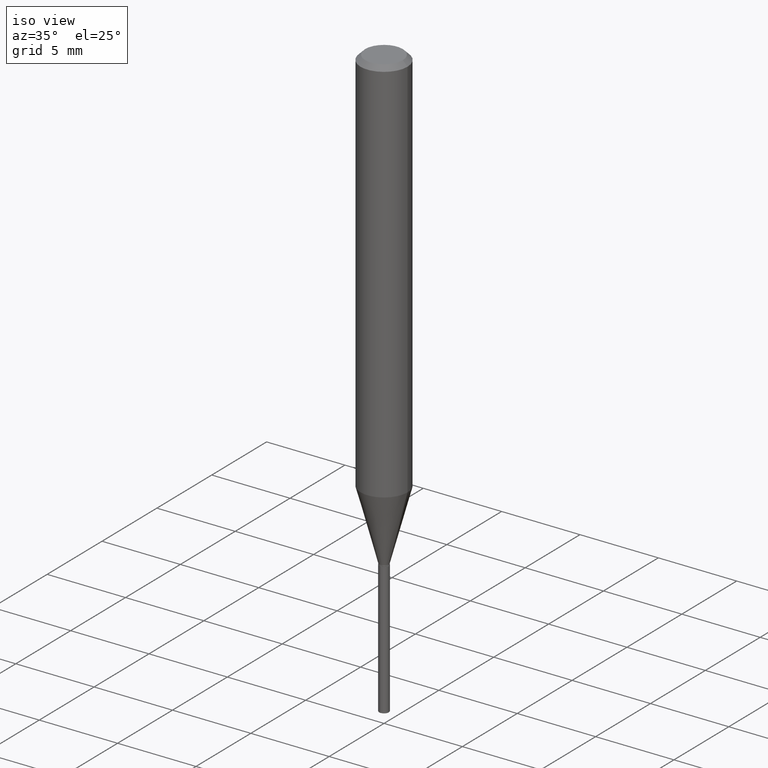
[diagram: clean part render]
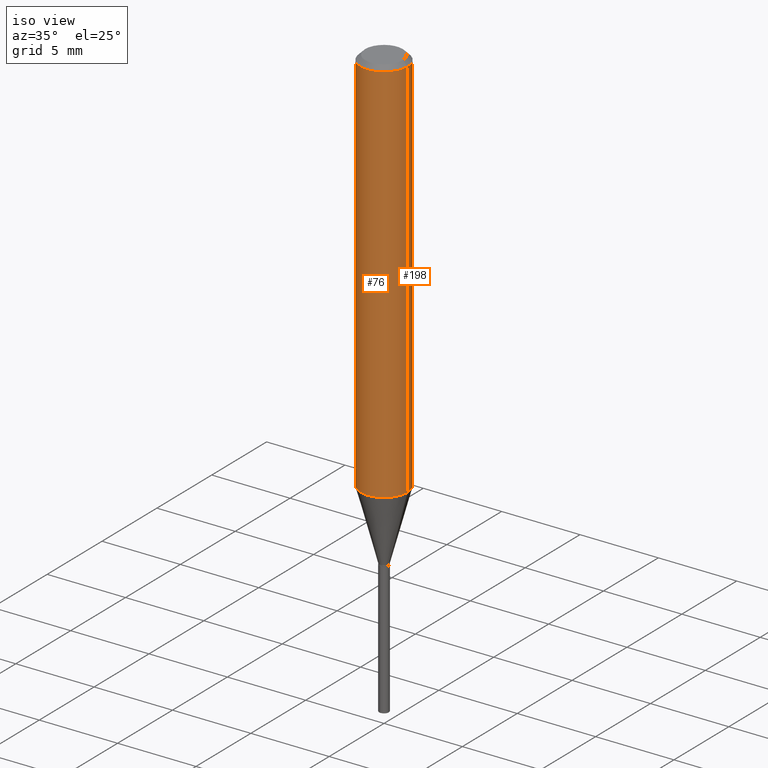
[diagram: same view with one multi-face feature highlighted, each face labeled with its STEP entity id]
A machine part, iso view. The highlighted faces form ONE feature: a constant-radius fillet chain: 2 tangent blend faces with common blend radius 1.4999 mm. The faces share edges in the B-rep.
Their STEP definitions:
[1] entity #76 (Cylinder):
#9 = FACE_OUTER_BOUND ( 'NONE', #143, .T. ) ;
#13 = LINE ( 'NONE', #284, #457 ) ;
#17 = DIRECTION ( 'NONE',  ( -2.445468806185136877E-29, 3.491481338843145188E-15, 1.000000000000000000 ) ) ;
#19 = EDGE_CURVE ( 'NONE', #256, #289, #266, .T. ) ;
#35 = CARTESIAN_POINT ( 'NONE',  ( 2.888098660104664642E-31, -4.123439461173780879E-17, -0.01181000000000007565 ) ) ;
#39 = EDGE_CURVE ( 'NONE', #428, #256, #53, .T. ) ;
#44 = DIRECTION ( 'NONE',  ( 1.000000000000000000, -6.982962677686265133E-15, 0.000000000000000000 ) ) ;
#53 = LINE ( 'NONE', #209, #273 ) ;
#76 = ADVANCED_FACE ( 'NONE', ( #9 ), #347, .T. ) ;
#84 = ORIENTED_EDGE ( 'NONE', *, *, #39, .F. ) ;
#87 = DIRECTION ( 'NONE',  ( -2.445468806185136597E-29, 3.491481338843145583E-15, 1.000000000000000000 ) ) ;
#143 = EDGE_LOOP ( 'NONE', ( #84, #157, #390, #431 ) ) ;
#152 = AXIS2_PLACEMENT_3D ( 'NONE', #270, #87, #278 ) ;
#157 = ORIENTED_EDGE ( 'NONE', *, *, #412, .T. ) ;
#187 = EDGE_CURVE ( 'NONE', #241, #289, #13, .T. ) ;
#188 = DIRECTION ( 'NONE',  ( -2.445468806185136597E-29, 3.491481338843145583E-15, 1.000000000000000000 ) ) ;
#191 = AXIS2_PLACEMENT_3D ( 'NONE', #283, #432, #44 ) ;
#209 = CARTESIAN_POINT ( 'NONE',  ( -0.05905000000000006771, 4.195754854663396409E-16, -2.904631170795525045E-30 ) ) ;
#241 = VERTEX_POINT ( 'NONE', #404 ) ;
#243 = DIRECTION ( 'NONE',  ( -2.445468806185136877E-29, 3.491481338843145188E-15, 1.000000000000000000 ) ) ;
#256 = VERTEX_POINT ( 'NONE', #406 ) ;
#266 = CIRCLE ( 'NONE', #304, 0.05904999999999999832 ) ;
#270 = CARTESIAN_POINT ( 'NONE',  ( 0.000000000000000000, 0.000000000000000000, 0.000000000000000000 ) ) ;
#273 = VECTOR ( 'NONE', #17, 39.37007874015748143 ) ;
#278 = DIRECTION ( 'NONE',  ( 1.000000000000000000, -6.982962677686266711E-15, 4.876176775795936353E-29 ) ) ;
#283 = CARTESIAN_POINT ( 'NONE',  ( 2.392419274614015052E-29, -3.415740667342255864E-15, -0.9783070095038842728 ) ) ;
#284 = CARTESIAN_POINT ( 'NONE',  ( 0.05905000000000006771, -4.123439461173745257E-16, 2.879382386107503723E-30 ) ) ;
#289 = VERTEX_POINT ( 'NONE', #365 ) ;
#304 = AXIS2_PLACEMENT_3D ( 'NONE', #35, #188, #480 ) ;
#347 = CYLINDRICAL_SURFACE ( 'NONE', #152, 0.05905000000000006771 ) ;
#349 = CARTESIAN_POINT ( 'NONE',  ( -0.05905000000000011628, -2.996165181875915977E-15, -0.9783070095038842728 ) ) ;
#360 = CIRCLE ( 'NONE', #191, 0.05905000000000013016 ) ;
#365 = CARTESIAN_POINT ( 'NONE',  ( 0.05904999999999999832, -4.535783407291118600E-16, -0.01181000000000007565 ) ) ;
#390 = ORIENTED_EDGE ( 'NONE', *, *, #187, .T. ) ;
#404 = CARTESIAN_POINT ( 'NONE',  ( 0.05905000000000011628, -3.828084613459630390E-15, -0.9783070095038842728 ) ) ;
#406 = CARTESIAN_POINT ( 'NONE',  ( -0.05904999999999999832, -1.308912045510656317E-15, -0.01181000000000007565 ) ) ;
#412 = EDGE_CURVE ( 'NONE', #428, #241, #360, .T. ) ;
#428 = VERTEX_POINT ( 'NONE', #349 ) ;
#431 = ORIENTED_EDGE ( 'NONE', *, *, #19, .F. ) ;
#432 = DIRECTION ( 'NONE',  ( -2.445468806185136597E-29, 3.491481338843145583E-15, 1.000000000000000000 ) ) ;
#457 = VECTOR ( 'NONE', #243, 39.37007874015748143 ) ;
#480 = DIRECTION ( 'NONE',  ( 1.000000000000000000, -6.982962677686266711E-15, 0.000000000000000000 ) ) ;
[2] entity #198 (Cylinder):
#13 = LINE ( 'NONE', #284, #457 ) ;
#17 = DIRECTION ( 'NONE',  ( -2.445468806185136877E-29, 3.491481338843145188E-15, 1.000000000000000000 ) ) ;
#39 = EDGE_CURVE ( 'NONE', #428, #256, #53, .T. ) ;
#53 = LINE ( 'NONE', #209, #273 ) ;
#56 = DIRECTION ( 'NONE',  ( 1.000000000000000000, -6.982962677686266711E-15, 4.876176775795936353E-29 ) ) ;
#65 = EDGE_CURVE ( 'NONE', #241, #428, #440, .T. ) ;
#95 = CYLINDRICAL_SURFACE ( 'NONE', #252, 0.05905000000000006771 ) ;
#118 = CARTESIAN_POINT ( 'NONE',  ( 2.392419274614015052E-29, -3.415740667342255864E-15, -0.9783070095038842728 ) ) ;
#119 = ORIENTED_EDGE ( 'NONE', *, *, #65, .T. ) ;
#149 = AXIS2_PLACEMENT_3D ( 'NONE', #189, #183, #334 ) ;
#160 = AXIS2_PLACEMENT_3D ( 'NONE', #118, #247, #455 ) ;
#183 = DIRECTION ( 'NONE',  ( -2.445468806185136597E-29, 3.491481338843145583E-15, 1.000000000000000000 ) ) ;
#187 = EDGE_CURVE ( 'NONE', #241, #289, #13, .T. ) ;
#189 = CARTESIAN_POINT ( 'NONE',  ( 2.888098660104664642E-31, -4.123439461173780879E-17, -0.01181000000000007565 ) ) ;
#198 = ADVANCED_FACE ( 'NONE', ( #435 ), #95, .T. ) ;
#204 = ORIENTED_EDGE ( 'NONE', *, *, #187, .F. ) ;
#209 = CARTESIAN_POINT ( 'NONE',  ( -0.05905000000000006771, 4.195754854663396409E-16, -2.904631170795525045E-30 ) ) ;
#210 = ORIENTED_EDGE ( 'NONE', *, *, #39, .T. ) ;
#211 = EDGE_LOOP ( 'NONE', ( #119, #210, #392, #204 ) ) ;
#241 = VERTEX_POINT ( 'NONE', #404 ) ;
#243 = DIRECTION ( 'NONE',  ( -2.445468806185136877E-29, 3.491481338843145188E-15, 1.000000000000000000 ) ) ;
#247 = DIRECTION ( 'NONE',  ( -2.445468806185136597E-29, 3.491481338843145583E-15, 1.000000000000000000 ) ) ;
#249 = CARTESIAN_POINT ( 'NONE',  ( 0.000000000000000000, 0.000000000000000000, 0.000000000000000000 ) ) ;
#252 = AXIS2_PLACEMENT_3D ( 'NONE', #249, #398, #56 ) ;
#256 = VERTEX_POINT ( 'NONE', #406 ) ;
#273 = VECTOR ( 'NONE', #17, 39.37007874015748143 ) ;
#284 = CARTESIAN_POINT ( 'NONE',  ( 0.05905000000000006771, -4.123439461173745257E-16, 2.879382386107503723E-30 ) ) ;
#289 = VERTEX_POINT ( 'NONE', #365 ) ;
#334 = DIRECTION ( 'NONE',  ( 1.000000000000000000, -6.982962677686266711E-15, 0.000000000000000000 ) ) ;
#349 = CARTESIAN_POINT ( 'NONE',  ( -0.05905000000000011628, -2.996165181875915977E-15, -0.9783070095038842728 ) ) ;
#365 = CARTESIAN_POINT ( 'NONE',  ( 0.05904999999999999832, -4.535783407291118600E-16, -0.01181000000000007565 ) ) ;
#392 = ORIENTED_EDGE ( 'NONE', *, *, #470, .F. ) ;
#394 = CIRCLE ( 'NONE', #149, 0.05904999999999999832 ) ;
#398 = DIRECTION ( 'NONE',  ( -2.445468806185136597E-29, 3.491481338843145583E-15, 1.000000000000000000 ) ) ;
#404 = CARTESIAN_POINT ( 'NONE',  ( 0.05905000000000011628, -3.828084613459630390E-15, -0.9783070095038842728 ) ) ;
#406 = CARTESIAN_POINT ( 'NONE',  ( -0.05904999999999999832, -1.308912045510656317E-15, -0.01181000000000007565 ) ) ;
#428 = VERTEX_POINT ( 'NONE', #349 ) ;
#435 = FACE_OUTER_BOUND ( 'NONE', #211, .T. ) ;
#440 = CIRCLE ( 'NONE', #160, 0.05905000000000013016 ) ;
#455 = DIRECTION ( 'NONE',  ( 1.000000000000000000, -6.982962677686265133E-15, 0.000000000000000000 ) ) ;
#457 = VECTOR ( 'NONE', #243, 39.37007874015748143 ) ;
#470 = EDGE_CURVE ( 'NONE', #289, #256, #394, .T. ) ;